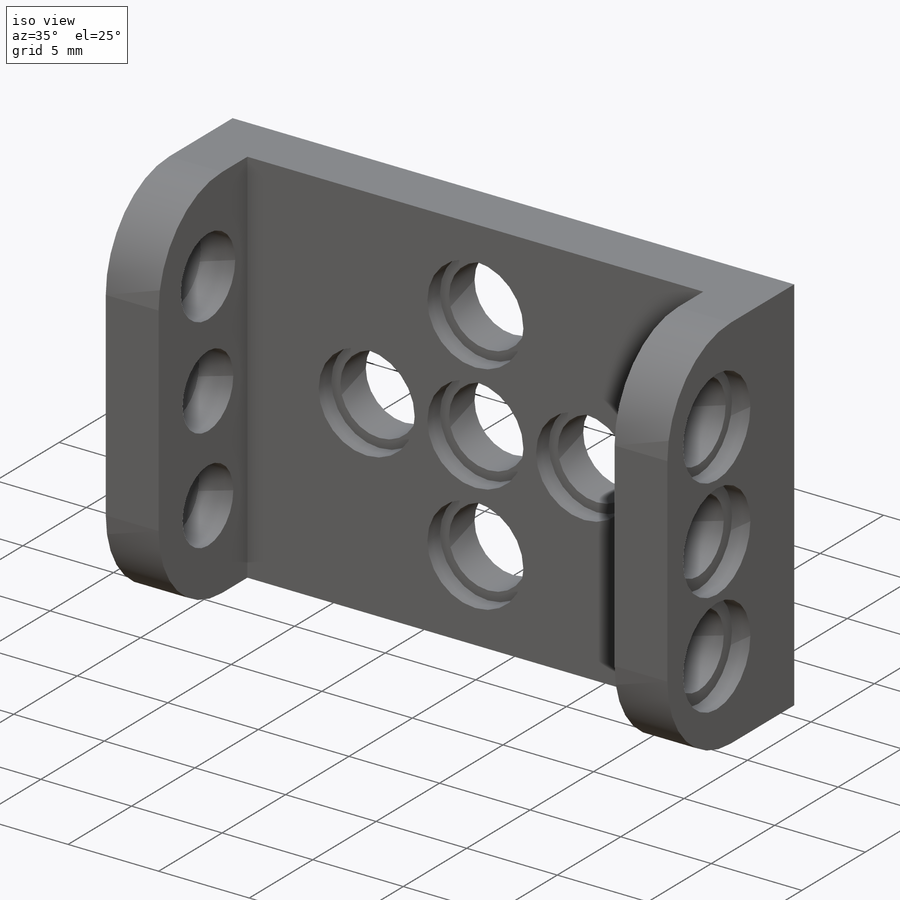
[diagram: iso view]
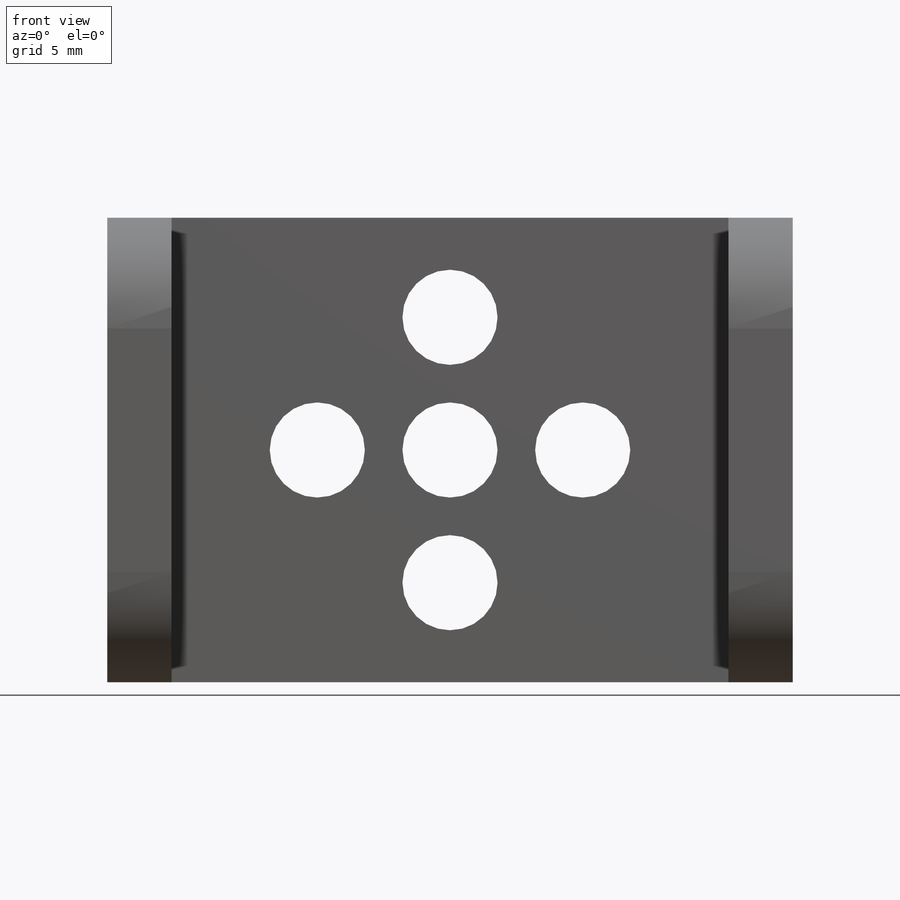
[diagram: front view]
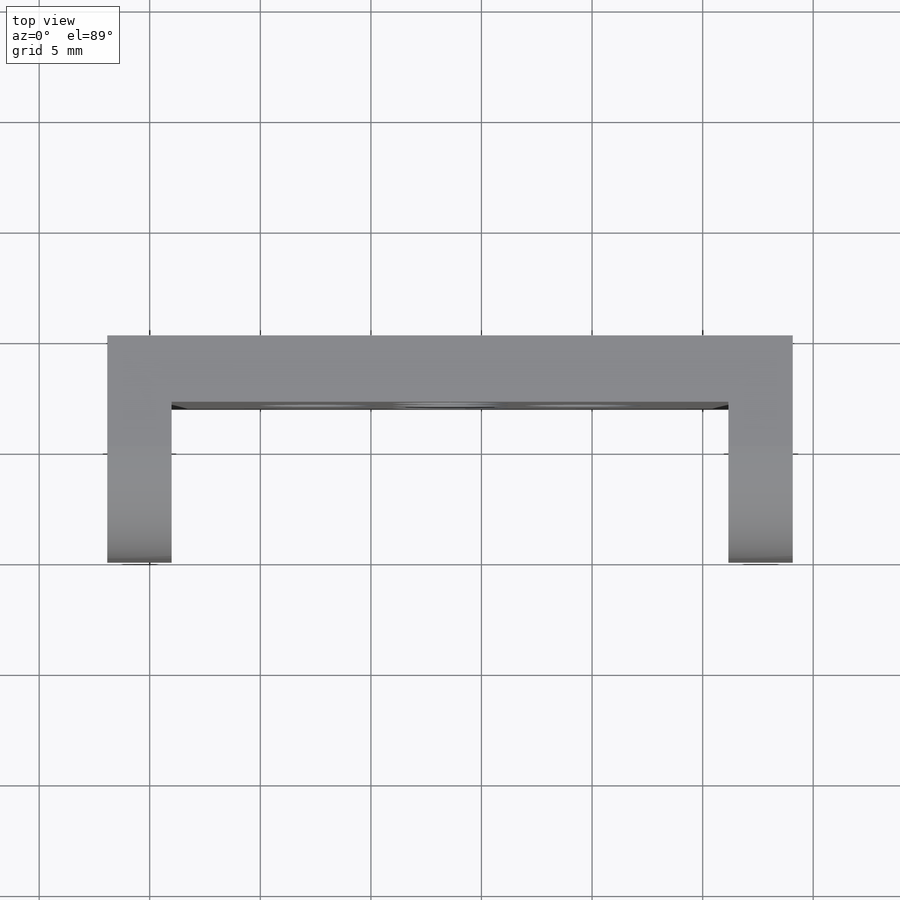
[diagram: top view]
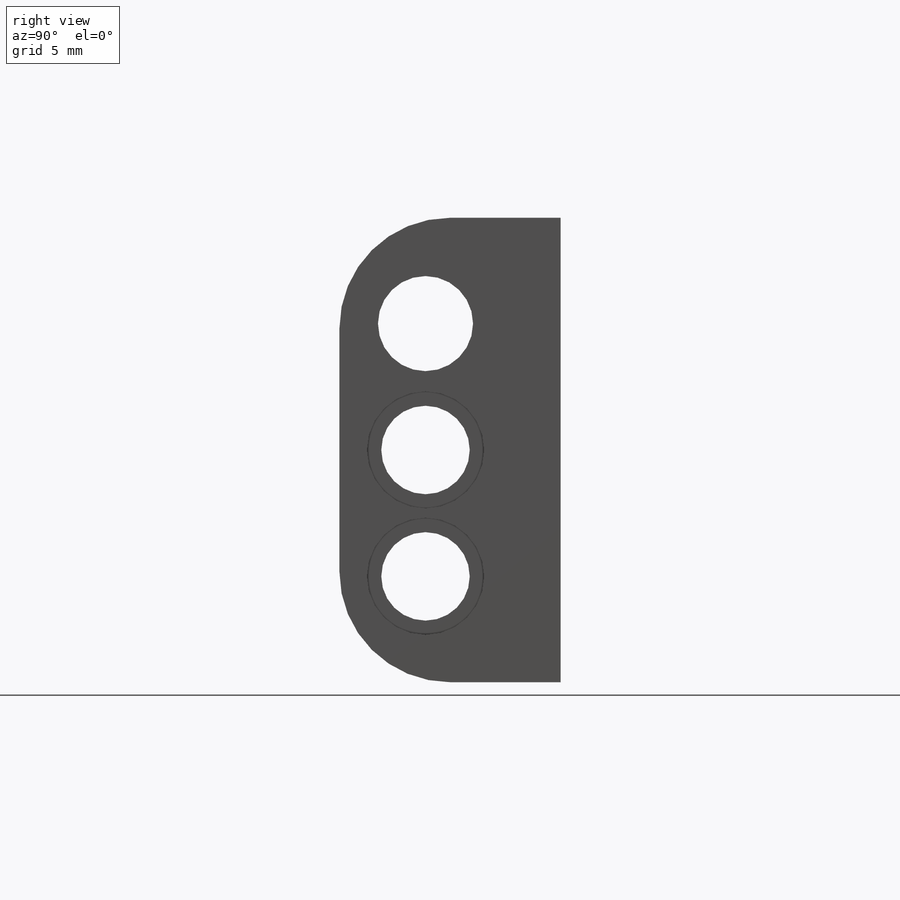
[diagram: right view]
SOLIDWORKS PART (.sldprt)
format: sldprt  version: not decoded by parser v0  size: 331,264 bytes
history: native  units: mm
features: sketch x10, cut_extrude x6, plane x3, material x1, extrude x1, fillet x1 (+9 scaffold rows collapsed)
feature tree (31):
  scaffold x9  (default folders/planes/origin — collapsed)
  material  "Material <sin especificar>"
  plane  "Alzado"
  plane  "Planta"
  plane  "Vista lateral"
  sketch  "Croquis1"  dims[c1.D1=~37.627242mm c1.D2=~75.619797mm c2.D1=21.0mm c2.D2=31.0mm]
  extrude  "Saliente-Extruir1"  Depth=10mm
  sketch  "Croquis2"  dims[c1.D1=21.0mm c1.D2=~28.035056mm c2.D1=25.17mm]
  cut_extrude  "Cortar-Extruir1"  Depth=7mm
  sketch  "Croquis3"  dims[D1=15.5mm]
  sketch  "Croquis4"  dims[c1.D1=21.0mm c1.D2=~20.745359mm c2.D1=6.0mm]
  sketch  "Croquis5"  dims[c1.D1=5.3mm c1.D2=4.3mm c2.D1=~8.485281mm]
  cut_extrude  "Cortar-Extruir2"  [1 undecoded]
  sketch  "Croquis6"  dims[D1=~10.500551mm]
  sketch  "Croquis7"  dims[D1=~25.52883mm]
  cut_extrude  "Cortar-Extruir4"  [1 undecoded]
  cut_extrude  "Cortar-Extruir5"  [1 undecoded]
  sketch  "Croquis6<3>"  dims[D1=1.015mm]
  sketch  "Croquis9"  dims[D1=2.5mm]
  cut_extrude  "Cortar-Extruir6"  Depth=1.015mm
  fillet  "Redondeo5"  Radius=5mm
  sketch  "Croquis10"  dims[D1=5.3mm D2=5.3mm]
  cut_extrude  "Cortar-Extruir8"  Depth=1mm
decode coverage: 15 of 18 modeling features carry decoded parameters
note: ~ marks probable driven/reference dimensions
note: 3 parameter values undecoded
summary: no parameter record found for 3 features
note: suppression state not decoded; provenance and decode notes live in map.json
